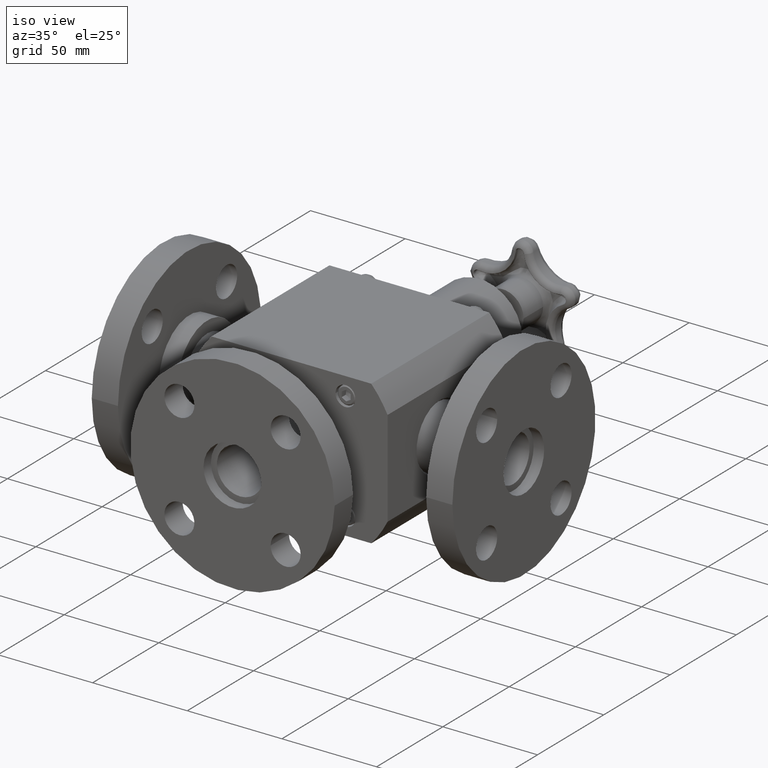
[diagram: clean part render]
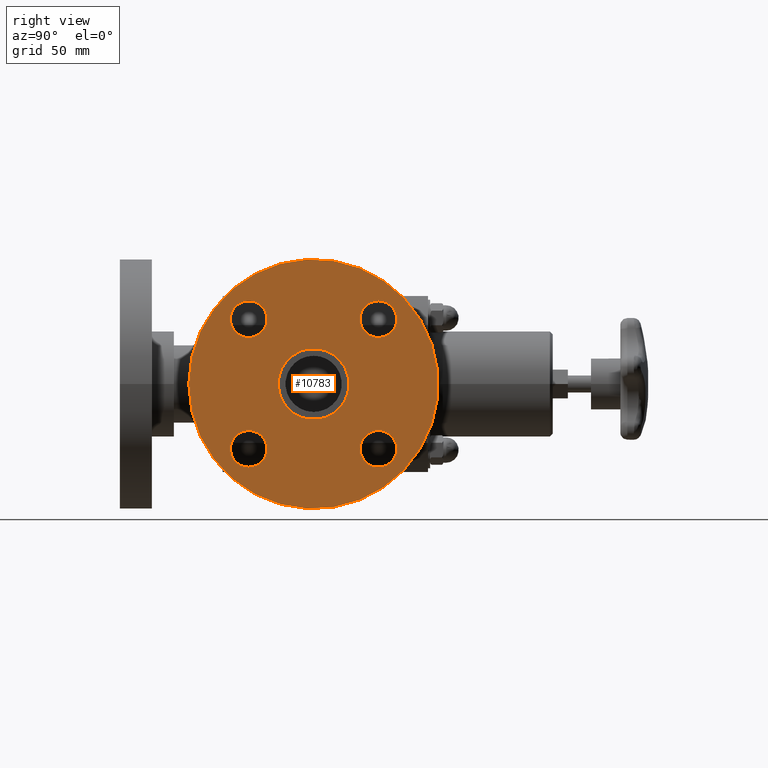
[diagram: tour spotlight — one face highlighted and labeled with its STEP entity id]
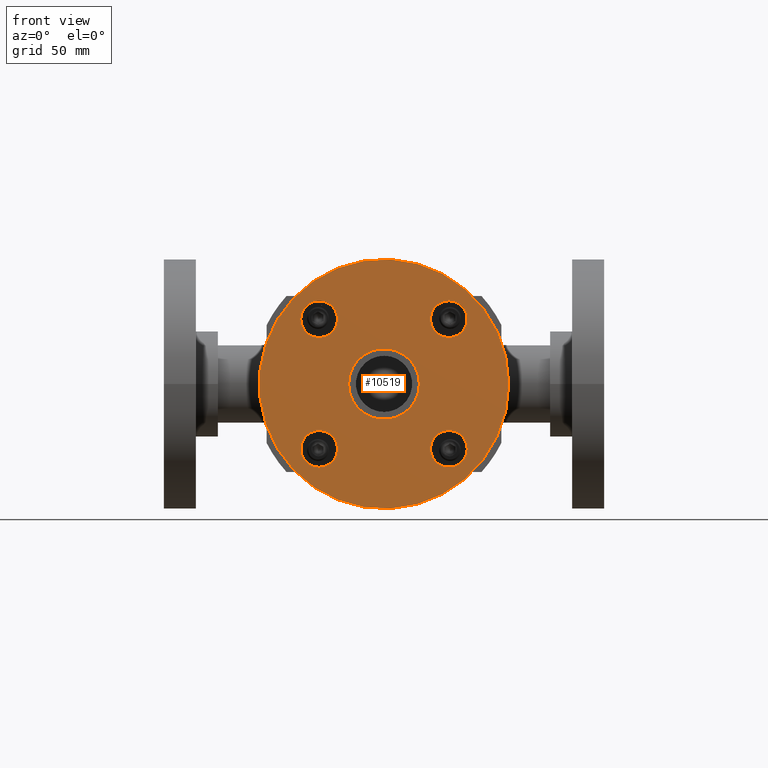
[diagram: tour spotlight — one face highlighted and labeled with its STEP entity id]
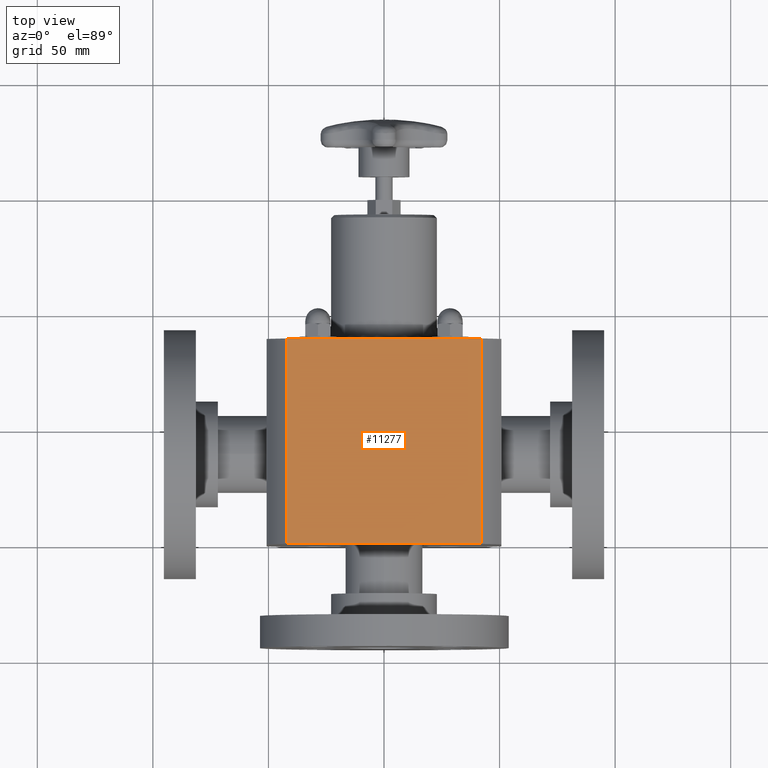
[diagram: tour spotlight — one face highlighted and labeled with its STEP entity id]
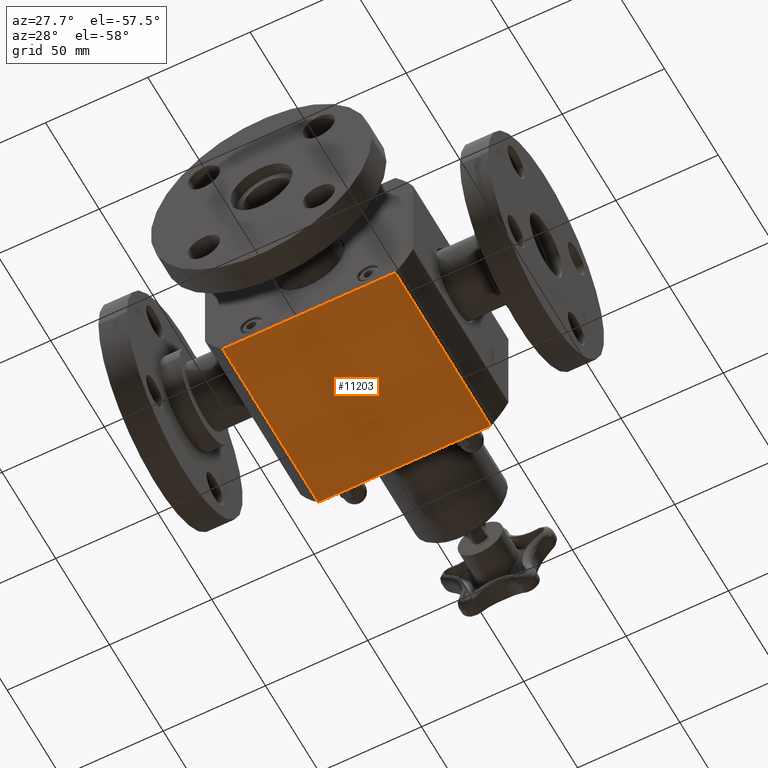
[diagram: tour spotlight — one face highlighted and labeled with its STEP entity id]
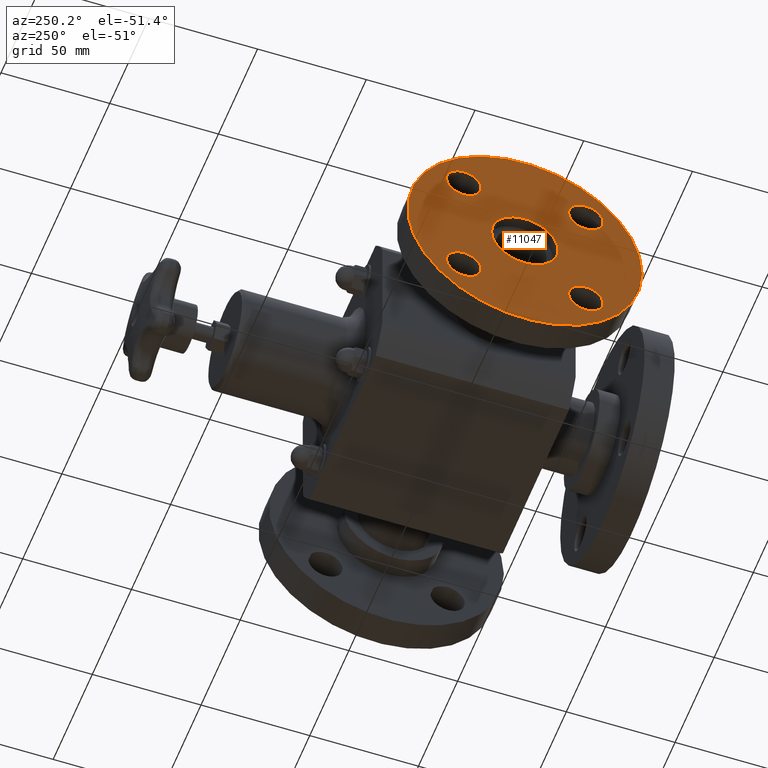
[diagram: tour spotlight — one face highlighted and labeled with its STEP entity id]
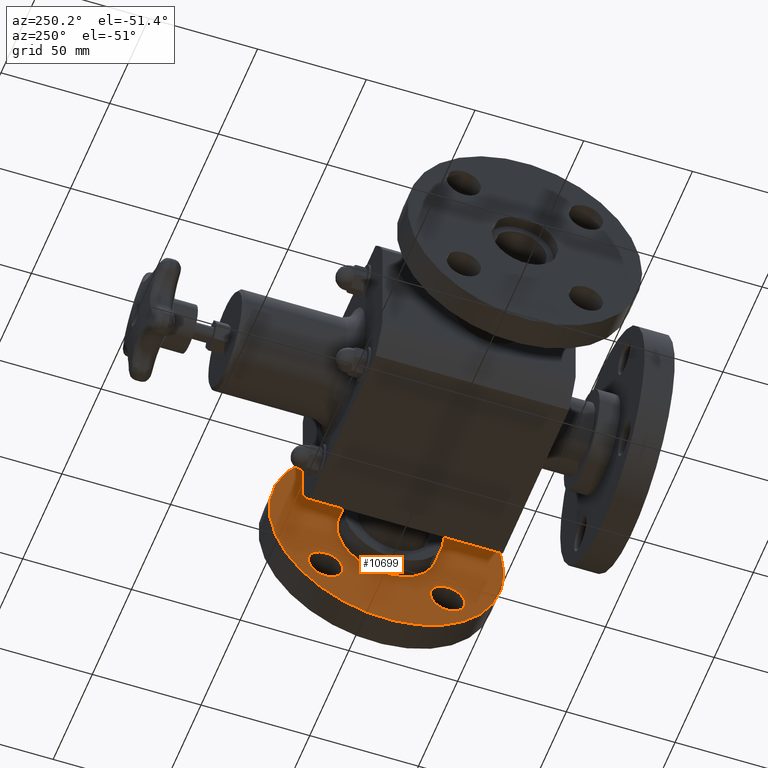
[diagram: tour spotlight — one face highlighted and labeled with its STEP entity id]
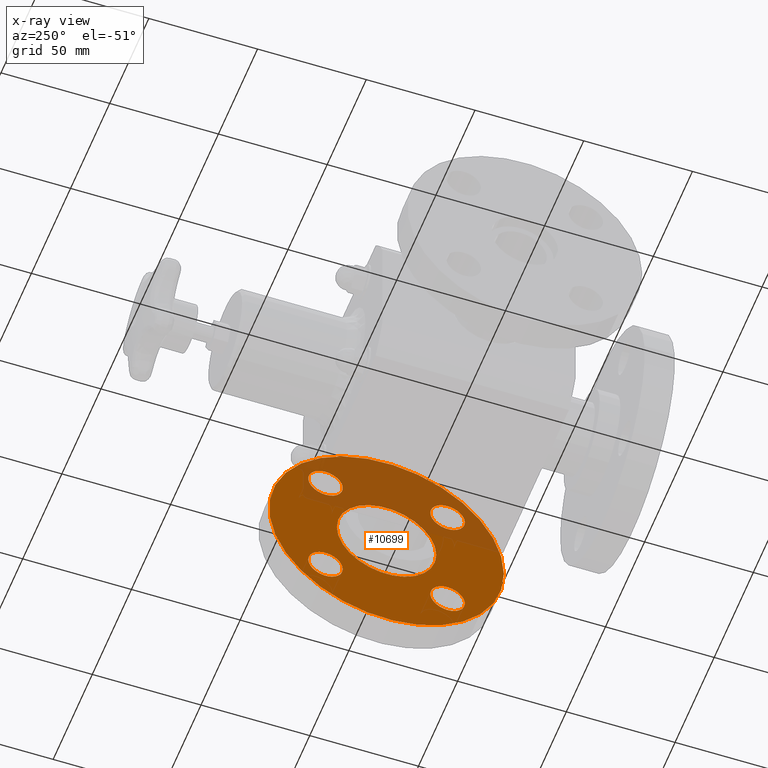
[diagram: x-ray of the same camera — body ghosted, this tour face saturated]
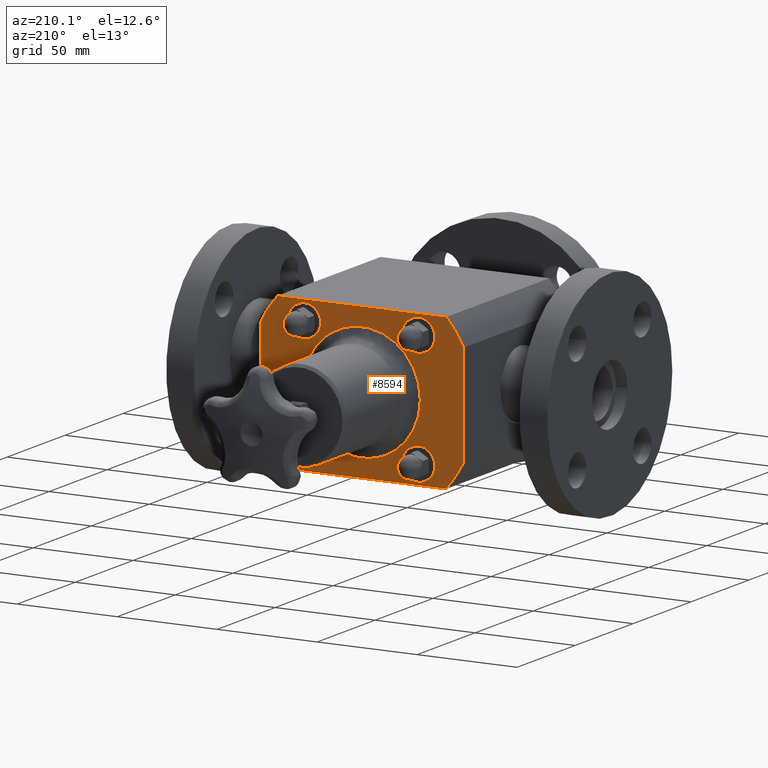
[diagram: tour spotlight — one face highlighted and labeled with its STEP entity id]
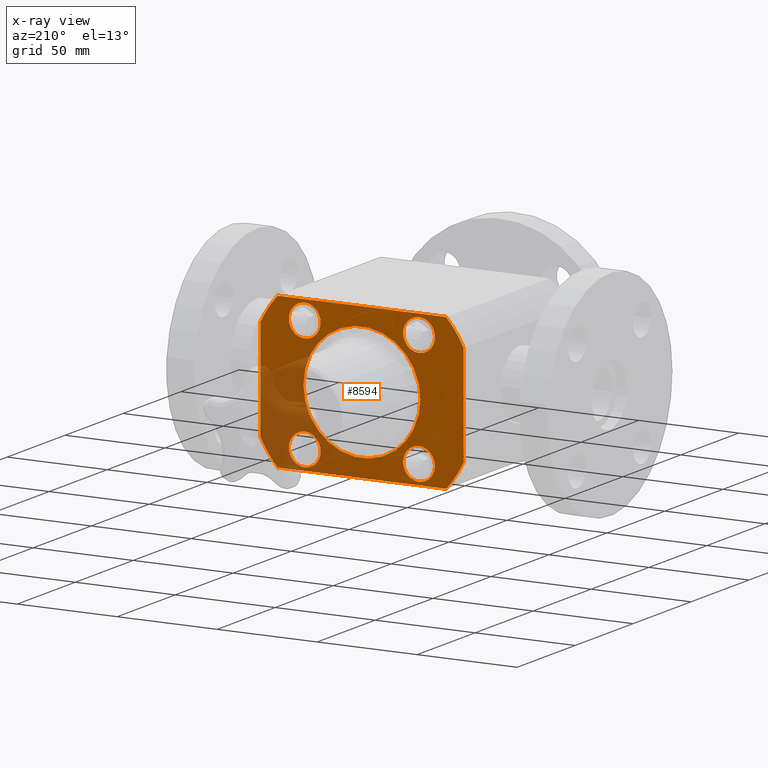
[diagram: x-ray of the same camera — body ghosted, this tour face saturated]
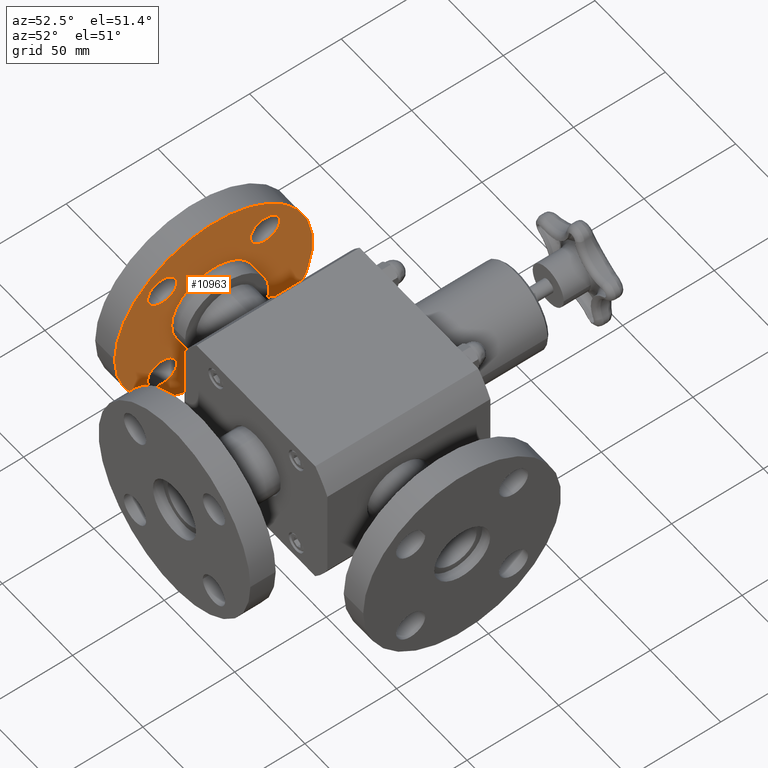
[diagram: tour spotlight — one face highlighted and labeled with its STEP entity id]
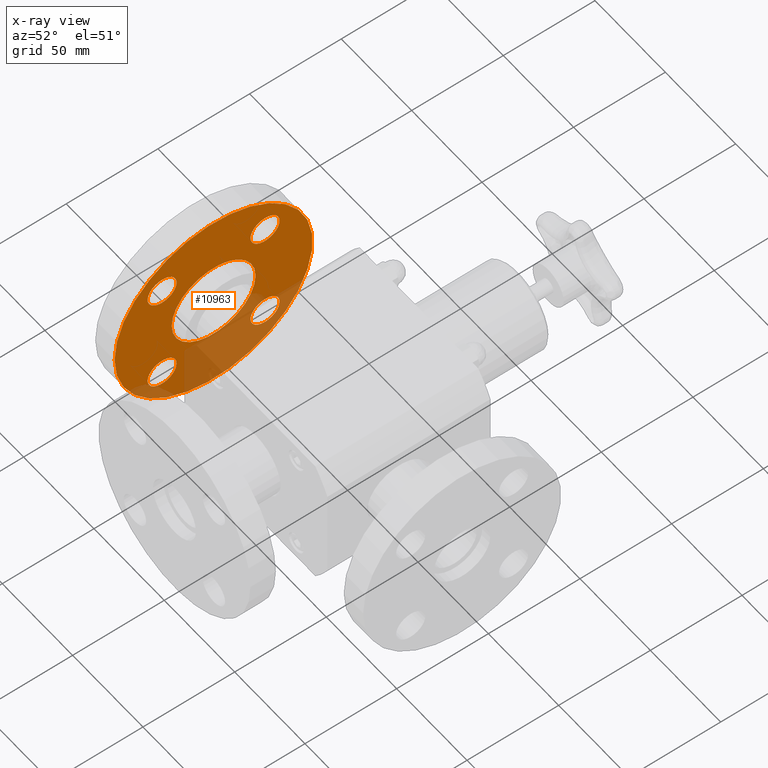
[diagram: x-ray of the same camera — body ghosted, this tour face saturated]
A machine part: a face-by-face anatomy tour. The part has 380 B-rep faces; the first image is the clean iso view, then the 8 largest visible faces are spotlighted one at a time (largest first), each with its STEP entity span.

Face 1 — right view, entity #10783. In plain terms, the highlighted planar face has unit normal (1, 0, 0).
Definition (entity closure, byte-faithful):
#10708=CARTESIAN_POINT('',(3.750000000000000,-0.575000000000001,-2.265472E-015));
#10709=VERTEX_POINT('',#10708);
#10710=CARTESIAN_POINT('',(3.749999999999999,1.549999999999999,-4.684453E-018));
#10711=DIRECTION('',(-1.0,0.0,0.0));
#10712=DIRECTION('',(0.0,-1.0,0.0));
#10713=AXIS2_PLACEMENT_3D('',#10710,#10711,#10712);
#10714=CIRCLE('',#10713,2.125000000000000);
#10715=EDGE_CURVE('',#10709,#10709,#10714,.T.);
#10720=CARTESIAN_POINT('',(3.749999999999999,0.186249999999999,-1.455578E-015));
#10721=DIRECTION('',(1.0,0.0,0.0));
#10722=DIRECTION('',(0.0,0.0,-1.0));
#10723=AXIS2_PLACEMENT_3D('',#10720,#10721,#10722);
#10724=PLANE('',#10723);
#10725=ORIENTED_EDGE('',*,*,#10715,.F.);
#10726=EDGE_LOOP('',(#10725));
#10727=FACE_OUTER_BOUND('',#10726,.T.);
#10728=CARTESIAN_POINT('',(3.749999999999999,0.445145654396020,-0.792354345603982));
#10729=VERTEX_POINT('',#10728);
#10730=CARTESIAN_POINT('',(3.749999999999999,0.445145654396020,-1.104854345603982));
#10731=DIRECTION('',(-1.0,0.0,0.0));
#10732=DIRECTION('',(0.0,0.0,-1.0));
#10733=AXIS2_PLACEMENT_3D('',#10730,#10731,#10732);
#10734=CIRCLE('',#10733,0.312500000000000);
#10735=EDGE_CURVE('',#10729,#10729,#10734,.T.);
#10736=ORIENTED_EDGE('',*,*,#10735,.T.);
#10737=EDGE_LOOP('',(#10736));
#10738=FACE_BOUND('',#10737,.T.);
#10739=CARTESIAN_POINT('',(3.749999999999999,2.342354345603980,-1.104854345603979));
#10740=VERTEX_POINT('',#10739);
#10741=CARTESIAN_POINT('',(3.749999999999999,2.654854345603981,-1.104854345603979));
#10742=DIRECTION('',(-1.0,0.0,0.0));
#10743=DIRECTION('',(0.0,1.0,0.0));
#10744=AXIS2_PLACEMENT_3D('',#10741,#10742,#10743);
#10745=CIRCLE('',#10744,0.312500000000000);
#10746=EDGE_CURVE('',#10740,#10740,#10745,.T.);
#10747=ORIENTED_EDGE('',*,*,#10746,.T.);
#10748=EDGE_LOOP('',(#10747));
#10749=FACE_BOUND('',#10748,.T.);
#10750=CARTESIAN_POINT('',(3.749999999999999,2.654854345603979,0.792354345603982));
#10751=VERTEX_POINT('',#10750);
#10752=CARTESIAN_POINT('',(3.749999999999999,2.654854345603978,1.104854345603982));
#10753=DIRECTION('',(-1.0,0.0,0.0));
#10754=DIRECTION('',(0.0,0.0,1.0));
#10755=AXIS2_PLACEMENT_3D('',#10752,#10753,#10754);
#10756=CIRCLE('',#10755,0.312500000000000);
#10757=EDGE_CURVE('',#10751,#10751,#10756,.T.);
#10758=ORIENTED_EDGE('',*,*,#10757,.T.);
#10759=EDGE_LOOP('',(#10758));
#10760=FACE_BOUND('',#10759,.T.);
#10761=CARTESIAN_POINT('',(3.749999999999999,0.757645654396018,1.104854345603979));
#10762=VERTEX_POINT('',#10761);
#10763=CARTESIAN_POINT('',(3.749999999999999,0.445145654396018,1.104854345603979));
#10764=DIRECTION('',(-1.0,0.0,0.0));
#10765=DIRECTION('',(0.0,-1.0,0.0));
#10766=AXIS2_PLACEMENT_3D('',#10763,#10764,#10765);
#10767=CIRCLE('',#10766,0.312500000000000);
#10768=EDGE_CURVE('',#10762,#10762,#10767,.T.);
#10769=ORIENTED_EDGE('',*,*,#10768,.T.);
#10770=EDGE_LOOP('',(#10769));
#10771=FACE_BOUND('',#10770,.T.);
#10772=CARTESIAN_POINT('',(3.749999999999999,0.947499999999999,-6.456843E-016));
#10773=VERTEX_POINT('',#10772);
#10774=CARTESIAN_POINT('',(3.749999999999999,1.549999999999999,-4.684453E-018));
#10775=DIRECTION('',(-1.0,0.0,0.0));
#10776=DIRECTION('',(0.0,-1.0,0.0));
#10777=AXIS2_PLACEMENT_3D('',#10774,#10775,#10776);
#10778=CIRCLE('',#10777,0.602500000000000);
#10779=EDGE_CURVE('',#10773,#10773,#10778,.T.);
#10780=ORIENTED_EDGE('',*,*,#10779,.T.);
#10781=EDGE_LOOP('',(#10780));
#10782=FACE_BOUND('',#10781,.T.);
#10783=ADVANCED_FACE('',(#10727,#10738,#10749,#10760,#10771,#10782),#10724,.T.);

Face 2 — front view, entity #10519. In plain terms, the highlighted planar face has unit normal (0, -1, 0).
Definition (entity closure, byte-faithful):
#10444=CARTESIAN_POINT('',(2.124999999999999,-1.750000000000002,1.105701E-016));
#10445=VERTEX_POINT('',#10444);
#10446=CARTESIAN_POINT('',(-9.220739E-016,-1.750000000000003,-1.711808E-015));
#10447=DIRECTION('',(0.0,1.0,0.0));
#10448=DIRECTION('',(1.0,0.0,0.0));
#10449=AXIS2_PLACEMENT_3D('',#10446,#10447,#10448);
#10450=CIRCLE('',#10449,2.125000000000000);
#10451=EDGE_CURVE('',#10445,#10445,#10450,.T.);
#10456=CARTESIAN_POINT('',(1.363749999999999,-1.750000000000003,-5.422699E-016));
#10457=DIRECTION('',(0.0,-1.0,0.0));
#10458=DIRECTION('',(0.0,0.0,1.0));
#10459=AXIS2_PLACEMENT_3D('',#10456,#10457,#10458);
#10460=PLANE('',#10459);
#10461=ORIENTED_EDGE('',*,*,#10451,.F.);
#10462=EDGE_LOOP('',(#10461));
#10463=FACE_OUTER_BOUND('',#10462,.T.);
#10464=CARTESIAN_POINT('',(1.104854345603979,-1.750000000000003,0.792354345603980));
#10465=VERTEX_POINT('',#10464);
#10466=CARTESIAN_POINT('',(1.104854345603979,-1.750000000000003,1.104854345603980));
#10467=DIRECTION('',(0.0,1.0,0.0));
#10468=DIRECTION('',(0.0,0.0,1.0));
#10469=AXIS2_PLACEMENT_3D('',#10466,#10467,#10468);
#10470=CIRCLE('',#10469,0.312500000000000);
#10471=EDGE_CURVE('',#10465,#10465,#10470,.T.);
#10472=ORIENTED_EDGE('',*,*,#10471,.T.);
#10473=EDGE_LOOP('',(#10472));
#10474=FACE_BOUND('',#10473,.T.);
#10475=CARTESIAN_POINT('',(-0.792354345603982,-1.750000000000004,1.104854345603978));
#10476=VERTEX_POINT('',#10475);
#10477=CARTESIAN_POINT('',(-1.104854345603982,-1.750000000000004,1.104854345603978));
#10478=DIRECTION('',(0.0,1.0,0.0));
#10479=DIRECTION('',(-1.0,0.0,0.0));
#10480=AXIS2_PLACEMENT_3D('',#10477,#10478,#10479);
#10481=CIRCLE('',#10480,0.312500000000000);
#10482=EDGE_CURVE('',#10476,#10476,#10481,.T.);
#10483=ORIENTED_EDGE('',*,*,#10482,.T.);
#10484=EDGE_LOOP('',(#10483));
#10485=FACE_BOUND('',#10484,.T.);
#10486=CARTESIAN_POINT('',(-1.104854345603981,-1.750000000000004,-0.792354345603983));
#10487=VERTEX_POINT('',#10486);
#10488=CARTESIAN_POINT('',(-1.104854345603980,-1.750000000000004,-1.104854345603983));
#10489=DIRECTION('',(0.0,1.0,0.0));
#10490=DIRECTION('',(0.0,0.0,-1.0));
#10491=AXIS2_PLACEMENT_3D('',#10488,#10489,#10490);
#10492=CIRCLE('',#10491,0.312500000000000);
#10493=EDGE_CURVE('',#10487,#10487,#10492,.T.);
#10494=ORIENTED_EDGE('',*,*,#10493,.T.);
#10495=EDGE_LOOP('',(#10494));
#10496=FACE_BOUND('',#10495,.T.);
#10497=CARTESIAN_POINT('',(0.792354345603980,-1.750000000000003,-1.104854345603981));
#10498=VERTEX_POINT('',#10497);
#10499=CARTESIAN_POINT('',(1.104854345603980,-1.750000000000003,-1.104854345603981));
#10500=DIRECTION('',(0.0,1.0,0.0));
#10501=DIRECTION('',(1.0,0.0,0.0));
#10502=AXIS2_PLACEMENT_3D('',#10499,#10500,#10501);
#10503=CIRCLE('',#10502,0.312500000000000);
#10504=EDGE_CURVE('',#10498,#10498,#10503,.T.);
#10505=ORIENTED_EDGE('',*,*,#10504,.T.);
#10506=EDGE_LOOP('',(#10505));
#10507=FACE_BOUND('',#10506,.T.);
#10508=CARTESIAN_POINT('',(0.602499999999999,-1.750000000000003,-1.195110E-015));
#10509=VERTEX_POINT('',#10508);
#10510=CARTESIAN_POINT('',(-9.220739E-016,-1.750000000000003,-1.711808E-015));
#10511=DIRECTION('',(0.0,1.0,0.0));
#10512=DIRECTION('',(1.0,0.0,0.0));
#10513=AXIS2_PLACEMENT_3D('',#10510,#10511,#10512);
#10514=CIRCLE('',#10513,0.602500000000000);
#10515=EDGE_CURVE('',#10509,#10509,#10514,.T.);
#10516=ORIENTED_EDGE('',*,*,#10515,.T.);
#10517=EDGE_LOOP('',(#10516));
#10518=FACE_BOUND('',#10517,.T.);
#10519=ADVANCED_FACE('',(#10463,#10474,#10485,#10496,#10507,#10518),#10460,.T.);

Face 3 — top view, entity #11277. In plain terms, the highlighted planar face has unit normal (0, 0, 1).
Definition (entity closure, byte-faithful):
#8487=CARTESIAN_POINT('',(-1.660242828624779,3.499999999999998,1.500000000000000));
#8488=VERTEX_POINT('',#8487);
#8496=CARTESIAN_POINT('',(1.660242828624775,3.500000000000000,1.499999999999999));
#8497=VERTEX_POINT('',#8496);
#8498=CARTESIAN_POINT('',(1.660242828624775,3.500000000000000,1.499999999999999));
#8499=DIRECTION('',(-1.0,0.0,0.0));
#8500=VECTOR('',#8499,3.320485657249554);
#8501=LINE('',#8498,#8500);
#8502=EDGE_CURVE('',#8497,#8488,#8501,.T.);
#11121=CARTESIAN_POINT('',(1.660242828624776,-1.349041E-015,1.499999999999999));
#11122=VERTEX_POINT('',#11121);
#11123=CARTESIAN_POINT('',(1.660242828624776,-1.349041E-015,1.499999999999999));
#11124=DIRECTION('',(0.0,1.0,0.0));
#11125=VECTOR('',#11124,3.500000000000001);
#11126=LINE('',#11123,#11125);
#11127=EDGE_CURVE('',#11122,#8497,#11126,.T.);
#11242=CARTESIAN_POINT('',(-1.660242828624777,-3.007957E-015,1.499999999999999));
#11243=VERTEX_POINT('',#11242);
#11251=CARTESIAN_POINT('',(-1.660242828624777,-3.007957E-015,1.499999999999999));
#11252=DIRECTION('',(0.0,1.0,0.0));
#11253=VECTOR('',#11252,3.500000000000001);
#11254=LINE('',#11251,#11253);
#11255=EDGE_CURVE('',#11243,#8488,#11254,.T.);
#11261=CARTESIAN_POINT('',(1.660242828624776,-1.349041E-015,1.499999999999999));
#11262=DIRECTION('',(0.0,0.0,1.0));
#11263=DIRECTION('',(1.0,0.0,0.0));
#11264=AXIS2_PLACEMENT_3D('',#11261,#11262,#11263);
#11265=PLANE('',#11264);
#11266=ORIENTED_EDGE('',*,*,#11255,.F.);
#11267=CARTESIAN_POINT('',(-1.660242828624777,-3.007957E-015,1.499999999999999));
#11268=DIRECTION('',(1.0,0.0,0.0));
#11269=VECTOR('',#11268,3.320485657249553);
#11270=LINE('',#11267,#11269);
#11271=EDGE_CURVE('',#11243,#11122,#11270,.T.);
#11272=ORIENTED_EDGE('',*,*,#11271,.T.);
#11273=ORIENTED_EDGE('',*,*,#11127,.T.);
#11274=ORIENTED_EDGE('',*,*,#8502,.T.);
#11275=EDGE_LOOP('',(#11266,#11272,#11273,#11274));
#11276=FACE_OUTER_BOUND('',#11275,.T.);
#11277=ADVANCED_FACE('',(#11276),#11265,.T.);

Face 4 — auxiliary view, entity #11203. In plain terms, the highlighted planar face has unit normal (0, 0, -1).
Definition (entity closure, byte-faithful):
#8521=CARTESIAN_POINT('',(1.660242828624775,3.500000000000000,-1.500000000000000));
#8522=VERTEX_POINT('',#8521);
#8530=CARTESIAN_POINT('',(-1.660242828624779,3.499999999999998,-1.500000000000000));
#8531=VERTEX_POINT('',#8530);
#8532=CARTESIAN_POINT('',(-1.660242828624778,3.499999999999997,-1.500000000000000));
#8533=DIRECTION('',(1.0,0.0,0.0));
#8534=VECTOR('',#8533,3.320485657249553);
#8535=LINE('',#8532,#8534);
#8536=EDGE_CURVE('',#8531,#8522,#8535,.T.);
#11161=CARTESIAN_POINT('',(1.660242828624775,-4.888088E-016,-1.500000000000001));
#11162=VERTEX_POINT('',#11161);
#11170=CARTESIAN_POINT('',(1.660242828624775,-4.888088E-016,-1.500000000000001));
#11171=DIRECTION('',(0.0,1.0,0.0));
#11172=VECTOR('',#11171,3.500000000000000);
#11173=LINE('',#11170,#11172);
#11174=EDGE_CURVE('',#11162,#8522,#11173,.T.);
#11180=CARTESIAN_POINT('',(-1.660242828624778,-2.147725E-015,-1.500000000000001));
#11181=DIRECTION('',(0.0,0.0,-1.0));
#11182=DIRECTION('',(-1.0,0.0,0.0));
#11183=AXIS2_PLACEMENT_3D('',#11180,#11181,#11182);
#11184=PLANE('',#11183);
#11185=ORIENTED_EDGE('',*,*,#11174,.F.);
#11186=CARTESIAN_POINT('',(-1.660242828624778,-2.147725E-015,-1.500000000000001));
#11187=VERTEX_POINT('',#11186);
#11188=CARTESIAN_POINT('',(1.660242828624775,-4.888088E-016,-1.500000000000001));
#11189=DIRECTION('',(-1.0,0.0,0.0));
#11190=VECTOR('',#11189,3.320485657249553);
#11191=LINE('',#11188,#11190);
#11192=EDGE_CURVE('',#11162,#11187,#11191,.T.);
#11193=ORIENTED_EDGE('',*,*,#11192,.T.);
#11194=CARTESIAN_POINT('',(-1.660242828624778,-2.147725E-015,-1.500000000000001));
#11195=DIRECTION('',(0.0,1.0,0.0));
#11196=VECTOR('',#11195,3.500000000000000);
#11197=LINE('',#11194,#11196);
#11198=EDGE_CURVE('',#11187,#8531,#11197,.T.);
#11199=ORIENTED_EDGE('',*,*,#11198,.T.);
#11200=ORIENTED_EDGE('',*,*,#8536,.T.);
#11201=EDGE_LOOP('',(#11185,#11193,#11199,#11200));
#11202=FACE_OUTER_BOUND('',#11201,.T.);
#11203=ADVANCED_FACE('',(#11202),#11184,.T.);

Face 5 — auxiliary view, entity #11047. In plain terms, the highlighted planar face has unit normal (-1, 0, 0).
Definition (entity closure, byte-faithful):
#10972=CARTESIAN_POINT('',(-3.750000000000002,-0.575000000000005,-2.505233E-017));
#10973=VERTEX_POINT('',#10972);
#10974=CARTESIAN_POINT('',(-3.750000000000002,1.549999999999995,-1.067178E-015));
#10975=DIRECTION('',(1.0,0.0,0.0));
#10976=DIRECTION('',(0.0,-1.0,0.0));
#10977=AXIS2_PLACEMENT_3D('',#10974,#10975,#10976);
#10978=CIRCLE('',#10977,2.125000000000000);
#10979=EDGE_CURVE('',#10973,#10973,#10978,.T.);
#10984=CARTESIAN_POINT('',(-3.750000000000002,0.186249999999995,-3.983786E-016));
#10985=DIRECTION('',(-1.0,0.0,0.0));
#10986=DIRECTION('',(0.0,0.0,1.0));
#10987=AXIS2_PLACEMENT_3D('',#10984,#10985,#10986);
#10988=PLANE('',#10987);
#10989=ORIENTED_EDGE('',*,*,#10979,.F.);
#10990=EDGE_LOOP('',(#10989));
#10991=FACE_OUTER_BOUND('',#10990,.T.);
#10992=CARTESIAN_POINT('',(-3.750000000000002,0.445145654396015,0.792354345603980));
#10993=VERTEX_POINT('',#10992);
#10994=CARTESIAN_POINT('',(-3.750000000000002,0.445145654396016,1.104854345603980));
#10995=DIRECTION('',(1.0,0.0,0.0));
#10996=DIRECTION('',(0.0,0.0,1.0));
#10997=AXIS2_PLACEMENT_3D('',#10994,#10995,#10996);
#10998=CIRCLE('',#10997,0.312500000000000);
#10999=EDGE_CURVE('',#10993,#10993,#10998,.T.);
#11000=ORIENTED_EDGE('',*,*,#10999,.T.);
#11001=EDGE_LOOP('',(#11000));
#11002=FACE_BOUND('',#11001,.T.);
#11003=CARTESIAN_POINT('',(-3.750000000000002,2.342354345603976,1.104854345603979));
#11004=VERTEX_POINT('',#11003);
#11005=CARTESIAN_POINT('',(-3.750000000000002,2.654854345603976,1.104854345603979));
#11006=DIRECTION('',(1.0,0.0,0.0));
#11007=DIRECTION('',(0.0,1.0,0.0));
#11008=AXIS2_PLACEMENT_3D('',#11005,#11006,#11007);
#11009=CIRCLE('',#11008,0.312500000000000);
#11010=EDGE_CURVE('',#11004,#11004,#11009,.T.);
#11011=ORIENTED_EDGE('',*,*,#11010,.T.);
#11012=EDGE_LOOP('',(#11011));
#11013=FACE_BOUND('',#11012,.T.);
#11014=CARTESIAN_POINT('',(-3.750000000000003,2.654854345603976,-0.792354345603982));
#11015=VERTEX_POINT('',#11014);
#11016=CARTESIAN_POINT('',(-3.750000000000003,2.654854345603976,-1.104854345603982));
#11017=DIRECTION('',(1.0,0.0,0.0));
#11018=DIRECTION('',(0.0,0.0,-1.0));
#11019=AXIS2_PLACEMENT_3D('',#11016,#11017,#11018);
#11020=CIRCLE('',#11019,0.312500000000000);
#11021=EDGE_CURVE('',#11015,#11015,#11020,.T.);
#11022=ORIENTED_EDGE('',*,*,#11021,.T.);
#11023=EDGE_LOOP('',(#11022));
#11024=FACE_BOUND('',#11023,.T.);
#11025=CARTESIAN_POINT('',(-3.750000000000002,0.757645654396015,-1.104854345603981));
#11026=VERTEX_POINT('',#11025);
#11027=CARTESIAN_POINT('',(-3.750000000000002,0.445145654396014,-1.104854345603981));
#11028=DIRECTION('',(1.0,0.0,0.0));
#11029=DIRECTION('',(0.0,-1.0,0.0));
#11030=AXIS2_PLACEMENT_3D('',#11027,#11028,#11029);
#11031=CIRCLE('',#11030,0.312500000000000);
#11032=EDGE_CURVE('',#11026,#11026,#11031,.T.);
#11033=ORIENTED_EDGE('',*,*,#11032,.T.);
#11034=EDGE_LOOP('',(#11033));
#11035=FACE_BOUND('',#11034,.T.);
#11036=CARTESIAN_POINT('',(-3.750000000000002,0.947499999999995,-7.717048E-016));
#11037=VERTEX_POINT('',#11036);
#11038=CARTESIAN_POINT('',(-3.750000000000002,1.549999999999995,-1.067178E-015));
#11039=DIRECTION('',(1.0,0.0,0.0));
#11040=DIRECTION('',(0.0,-1.0,0.0));
#11041=AXIS2_PLACEMENT_3D('',#11038,#11039,#11040);
#11042=CIRCLE('',#11041,0.602500000000000);
#11043=EDGE_CURVE('',#11037,#11037,#11042,.T.);
#11044=ORIENTED_EDGE('',*,*,#11043,.T.);
#11045=EDGE_LOOP('',(#11044));
#11046=FACE_BOUND('',#11045,.T.);
#11047=ADVANCED_FACE('',(#10991,#11002,#11013,#11024,#11035,#11046),#10988,.T.);

Face 6 — auxiliary view, entity #10699. An x-ray twin of the same camera follows (body ghosted, this face saturated) — the face is partly hidden behind the body. In plain terms, the highlighted planar face has unit normal (-1, 0, 0).
Definition (entity closure, byte-faithful):
#10624=CARTESIAN_POINT('',(3.204999999999999,0.649999999999999,-9.266852E-016));
#10625=VERTEX_POINT('',#10624);
#10626=CARTESIAN_POINT('',(3.204999999999999,1.549999999999999,3.082487E-017));
#10627=DIRECTION('',(-1.0,0.0,0.0));
#10628=DIRECTION('',(0.0,-1.0,0.0));
#10629=AXIS2_PLACEMENT_3D('',#10626,#10627,#10628);
#10630=CIRCLE('',#10629,0.900000000000000);
#10631=EDGE_CURVE('',#10625,#10625,#10630,.T.);
#10636=CARTESIAN_POINT('',(3.204999999999999,0.037499999999999,-1.578324E-015));
#10637=DIRECTION('',(-1.0,0.0,0.0));
#10638=DIRECTION('',(0.0,0.0,1.0));
#10639=AXIS2_PLACEMENT_3D('',#10636,#10637,#10638);
#10640=PLANE('',#10639);
#10641=CARTESIAN_POINT('',(3.204999999999999,-0.575000000000001,-2.229963E-015));
#10642=VERTEX_POINT('',#10641);
#10643=CARTESIAN_POINT('',(3.204999999999999,1.549999999999999,3.082487E-017));
#10644=DIRECTION('',(-1.0,0.0,0.0));
#10645=DIRECTION('',(0.0,-1.0,0.0));
#10646=AXIS2_PLACEMENT_3D('',#10643,#10644,#10645);
#10647=CIRCLE('',#10646,2.125000000000000);
#10648=EDGE_CURVE('',#10642,#10642,#10647,.T.);
#10649=ORIENTED_EDGE('',*,*,#10648,.T.);
#10650=EDGE_LOOP('',(#10649));
#10651=FACE_OUTER_BOUND('',#10650,.T.);
#10652=CARTESIAN_POINT('',(3.204999999999999,0.445145654396020,-0.792354345603982));
#10653=VERTEX_POINT('',#10652);
#10654=CARTESIAN_POINT('',(3.204999999999999,0.445145654396020,-1.104854345603982));
#10655=DIRECTION('',(1.0,0.0,0.0));
#10656=DIRECTION('',(0.0,0.0,-1.0));
#10657=AXIS2_PLACEMENT_3D('',#10654,#10655,#10656);
#10658=CIRCLE('',#10657,0.312500000000000);
#10659=EDGE_CURVE('',#10653,#10653,#10658,.T.);
#10660=ORIENTED_EDGE('',*,*,#10659,.T.);
#10661=EDGE_LOOP('',(#10660));
#10662=FACE_BOUND('',#10661,.T.);
#10663=CARTESIAN_POINT('',(3.204999999999999,2.342354345603980,-1.104854345603979));
#10664=VERTEX_POINT('',#10663);
#10665=CARTESIAN_POINT('',(3.204999999999999,2.654854345603981,-1.104854345603979));
#10666=DIRECTION('',(1.0,0.0,0.0));
#10667=DIRECTION('',(0.0,1.0,0.0));
#10668=AXIS2_PLACEMENT_3D('',#10665,#10666,#10667);
#10669=CIRCLE('',#10668,0.312500000000000);
#10670=EDGE_CURVE('',#10664,#10664,#10669,.T.);
#10671=ORIENTED_EDGE('',*,*,#10670,.T.);
#10672=EDGE_LOOP('',(#10671));
#10673=FACE_BOUND('',#10672,.T.);
#10674=CARTESIAN_POINT('',(3.204999999999999,2.654854345603979,0.792354345603982));
#10675=VERTEX_POINT('',#10674);
#10676=CARTESIAN_POINT('',(3.204999999999999,2.654854345603978,1.104854345603982));
#10677=DIRECTION('',(1.0,0.0,0.0));
#10678=DIRECTION('',(0.0,0.0,1.0));
#10679=AXIS2_PLACEMENT_3D('',#10676,#10677,#10678);
#10680=CIRCLE('',#10679,0.312500000000000);
#10681=EDGE_CURVE('',#10675,#10675,#10680,.T.);
#10682=ORIENTED_EDGE('',*,*,#10681,.T.);
#10683=EDGE_LOOP('',(#10682));
#10684=FACE_BOUND('',#10683,.T.);
#10685=CARTESIAN_POINT('',(3.204999999999999,0.757645654396018,1.104854345603979));
#10686=VERTEX_POINT('',#10685);
#10687=CARTESIAN_POINT('',(3.204999999999999,0.445145654396018,1.104854345603979));
#10688=DIRECTION('',(1.0,0.0,0.0));
#10689=DIRECTION('',(0.0,-1.0,0.0));
#10690=AXIS2_PLACEMENT_3D('',#10687,#10688,#10689);
#10691=CIRCLE('',#10690,0.312500000000000);
#10692=EDGE_CURVE('',#10686,#10686,#10691,.T.);
#10693=ORIENTED_EDGE('',*,*,#10692,.T.);
#10694=EDGE_LOOP('',(#10693));
#10695=FACE_BOUND('',#10694,.T.);
#10696=ORIENTED_EDGE('',*,*,#10631,.F.);
#10697=EDGE_LOOP('',(#10696));
#10698=FACE_BOUND('',#10697,.T.);
#10699=ADVANCED_FACE('',(#10651,#10662,#10673,#10684,#10695,#10698),#10640,.T.);

Face 7 — auxiliary view, entity #8594. An x-ray twin of the same camera follows (body ghosted, this face saturated) — the face is partly hidden behind the body. In plain terms, the highlighted planar face has unit normal (0, 1, 0).
Definition (entity closure, byte-faithful):
#8460=CARTESIAN_POINT('',(-0.812499999999995,3.500000000000000,-1.125000000000000));
#8461=VERTEX_POINT('',#8460);
#8462=CARTESIAN_POINT('',(-1.124999999999995,3.500000000000003,-1.125000000000000));
#8463=DIRECTION('',(0.0,-1.0,0.0));
#8464=DIRECTION('',(1.0,0.0,0.0));
#8465=AXIS2_PLACEMENT_3D('',#8462,#8463,#8464);
#8466=CIRCLE('',#8465,0.312500000000000);
#8467=EDGE_CURVE('',#8461,#8461,#8466,.T.);
#8472=CARTESIAN_POINT('',(1.693749999999998,3.500000000000000,-5.376255E-016));
#8473=DIRECTION('',(0.0,1.0,0.0));
#8474=DIRECTION('',(0.0,0.0,1.0));
#8475=AXIS2_PLACEMENT_3D('',#8472,#8473,#8474);
#8476=PLANE('',#8475);
#8477=CARTESIAN_POINT('',(-2.000000000000001,3.499999999999998,1.003198011361665));
#8478=VERTEX_POINT('',#8477);
#8479=CARTESIAN_POINT('',(-2.000000000000002,3.499999999999998,-1.003198011361665));
#8480=VERTEX_POINT('',#8479);
#8481=CARTESIAN_POINT('',(-2.000000000000002,3.499999999999998,1.003198011361665));
#8482=DIRECTION('',(0.0,0.0,-1.0));
#8483=VECTOR('',#8482,2.006396022723330);
#8484=LINE('',#8481,#8483);
#8485=EDGE_CURVE('',#8478,#8480,#8484,.T.);
#8486=ORIENTED_EDGE('',*,*,#8485,.F.);
#8487=CARTESIAN_POINT('',(-1.660242828624779,3.499999999999998,1.500000000000000));
#8488=VERTEX_POINT('',#8487);
#8489=CARTESIAN_POINT('',(-2.159895E-015,3.499999999999999,-4.214597E-016));
#8490=DIRECTION('',(0.0,-1.0,0.0));
#8491=DIRECTION('',(1.0,0.0,0.0));
#8492=AXIS2_PLACEMENT_3D('',#8489,#8490,#8491);
#8493=CIRCLE('',#8492,2.237500000000000);
#8494=EDGE_CURVE('',#8488,#8478,#8493,.T.);
#8495=ORIENTED_EDGE('',*,*,#8494,.F.);
#8496=CARTESIAN_POINT('',(1.660242828624775,3.500000000000000,1.499999999999999));
#8497=VERTEX_POINT('',#8496);
#8498=CARTESIAN_POINT('',(1.660242828624775,3.500000000000000,1.499999999999999));
#8499=DIRECTION('',(-1.0,0.0,0.0));
#8500=VECTOR('',#8499,3.320485657249554);
#8501=LINE('',#8498,#8500);
#8502=EDGE_CURVE('',#8497,#8488,#8501,.T.);
#8503=ORIENTED_EDGE('',*,*,#8502,.F.);
#8504=CARTESIAN_POINT('',(1.999999999999997,3.500000000000000,1.003198011361666));
#8505=VERTEX_POINT('',#8504);
#8506=CARTESIAN_POINT('',(-2.159895E-015,3.499999999999999,-4.214597E-016));
#8507=DIRECTION('',(0.0,-1.0,0.0));
#8508=DIRECTION('',(1.0,0.0,0.0));
#8509=AXIS2_PLACEMENT_3D('',#8506,#8507,#8508);
#8510=CIRCLE('',#8509,2.237500000000000);
#8511=EDGE_CURVE('',#8505,#8497,#8510,.T.);
#8512=ORIENTED_EDGE('',*,*,#8511,.F.);
#8513=CARTESIAN_POINT('',(1.999999999999997,3.500000000000000,-1.003198011361666));
#8514=VERTEX_POINT('',#8513);
#8515=CARTESIAN_POINT('',(1.999999999999997,3.500000000000000,-1.003198011361666));
#8516=DIRECTION('',(0.0,0.0,1.0));
#8517=VECTOR('',#8516,2.006396022723332);
#8518=LINE('',#8515,#8517);
#8519=EDGE_CURVE('',#8514,#8505,#8518,.T.);
#8520=ORIENTED_EDGE('',*,*,#8519,.F.);
#8521=CARTESIAN_POINT('',(1.660242828624775,3.500000000000000,-1.500000000000000));
#8522=VERTEX_POINT('',#8521);
#8523=CARTESIAN_POINT('',(-2.159895E-015,3.499999999999999,-4.214597E-016));
#8524=DIRECTION('',(0.0,-1.0,0.0));
#8525=DIRECTION('',(1.0,0.0,0.0));
#8526=AXIS2_PLACEMENT_3D('',#8523,#8524,#8525);
#8527=CIRCLE('',#8526,2.237500000000000);
#8528=EDGE_CURVE('',#8522,#8514,#8527,.T.);
#8529=ORIENTED_EDGE('',*,*,#8528,.F.);
#8530=CARTESIAN_POINT('',(-1.660242828624779,3.499999999999998,-1.500000000000000));
#8531=VERTEX_POINT('',#8530);
#8532=CARTESIAN_POINT('',(-1.660242828624778,3.499999999999997,-1.500000000000000));
#8533=DIRECTION('',(1.0,0.0,0.0));
#8534=VECTOR('',#8533,3.320485657249553);
#8535=LINE('',#8532,#8534);
#8536=EDGE_CURVE('',#8531,#8522,#8535,.T.);
#8537=ORIENTED_EDGE('',*,*,#8536,.F.);
#8538=CARTESIAN_POINT('',(-2.159895E-015,3.499999999999999,-4.214597E-016));
#8539=DIRECTION('',(0.0,-1.0,0.0));
#8540=DIRECTION('',(1.0,0.0,0.0));
#8541=AXIS2_PLACEMENT_3D('',#8538,#8539,#8540);
#8542=CIRCLE('',#8541,2.237500000000000);
#8543=EDGE_CURVE('',#8480,#8531,#8542,.T.);
#8544=ORIENTED_EDGE('',*,*,#8543,.F.);
#8545=EDGE_LOOP('',(#8486,#8495,#8503,#8512,#8520,#8529,#8537,#8544));
#8546=FACE_OUTER_BOUND('',#8545,.T.);
#8547=CARTESIAN_POINT('',(-0.812499999999995,3.500000000000000,1.125000000000000));
#8548=VERTEX_POINT('',#8547);
#8549=CARTESIAN_POINT('',(-1.124999999999995,3.500000000000004,1.125000000000000));
#8550=DIRECTION('',(0.0,-1.0,0.0));
#8551=DIRECTION('',(1.0,0.0,0.0));
#8552=AXIS2_PLACEMENT_3D('',#8549,#8550,#8551);
#8553=CIRCLE('',#8552,0.312500000000000);
#8554=EDGE_CURVE('',#8548,#8548,#8553,.T.);
#8555=ORIENTED_EDGE('',*,*,#8554,.T.);
#8556=EDGE_LOOP('',(#8555));
#8557=FACE_BOUND('',#8556,.T.);
#8558=CARTESIAN_POINT('',(1.437500000000005,3.500000000000000,1.125000000000000));
#8559=VERTEX_POINT('',#8558);
#8560=CARTESIAN_POINT('',(1.125000000000005,3.500000000000001,1.125000000000000));
#8561=DIRECTION('',(0.0,-1.0,0.0));
#8562=DIRECTION('',(1.0,0.0,0.0));
#8563=AXIS2_PLACEMENT_3D('',#8560,#8561,#8562);
#8564=CIRCLE('',#8563,0.312500000000000);
#8565=EDGE_CURVE('',#8559,#8559,#8564,.T.);
#8566=ORIENTED_EDGE('',*,*,#8565,.T.);
#8567=EDGE_LOOP('',(#8566));
#8568=FACE_BOUND('',#8567,.T.);
#8569=CARTESIAN_POINT('',(1.149999999999998,3.500000000000000,-5.003324E-016));
#8570=VERTEX_POINT('',#8569);
#8571=CARTESIAN_POINT('',(-2.159895E-015,3.499999999999999,-4.214597E-016));
#8572=DIRECTION('',(0.0,-1.0,0.0));
#8573=DIRECTION('',(1.0,0.0,0.0));
#8574=AXIS2_PLACEMENT_3D('',#8571,#8572,#8573);
#8575=CIRCLE('',#8574,1.150000000000000);
#8576=EDGE_CURVE('',#8570,#8570,#8575,.T.);
#8577=ORIENTED_EDGE('',*,*,#8576,.T.);
#8578=EDGE_LOOP('',(#8577));
#8579=FACE_BOUND('',#8578,.T.);
#8580=CARTESIAN_POINT('',(1.437500000000005,3.500000000000000,-1.125000000000000));
#8581=VERTEX_POINT('',#8580);
#8582=CARTESIAN_POINT('',(1.125000000000005,3.500000000000000,-1.125000000000000));
#8583=DIRECTION('',(0.0,-1.0,0.0));
#8584=DIRECTION('',(1.0,0.0,0.0));
#8585=AXIS2_PLACEMENT_3D('',#8582,#8583,#8584);
#8586=CIRCLE('',#8585,0.312500000000000);
#8587=EDGE_CURVE('',#8581,#8581,#8586,.T.);
#8588=ORIENTED_EDGE('',*,*,#8587,.T.);
#8589=EDGE_LOOP('',(#8588));
#8590=FACE_BOUND('',#8589,.T.);
#8591=ORIENTED_EDGE('',*,*,#8467,.T.);
#8592=EDGE_LOOP('',(#8591));
#8593=FACE_BOUND('',#8592,.T.);
#8594=ADVANCED_FACE('',(#8546,#8557,#8568,#8579,#8590,#8593),#8476,.T.);

Face 8 — auxiliary view, entity #10963. An x-ray twin of the same camera follows (body ghosted, this face saturated) — the face is partly hidden behind the body. In plain terms, the highlighted planar face has unit normal (1, 0, 0).
Definition (entity closure, byte-faithful):
#10888=CARTESIAN_POINT('',(-3.205000000000002,0.649999999999995,-7.280598E-016));
#10889=VERTEX_POINT('',#10888);
#10890=CARTESIAN_POINT('',(-3.205000000000002,1.549999999999995,-1.169431E-015));
#10891=DIRECTION('',(1.0,0.0,0.0));
#10892=DIRECTION('',(0.0,-1.0,0.0));
#10893=AXIS2_PLACEMENT_3D('',#10890,#10891,#10892);
#10894=CIRCLE('',#10893,0.900000000000000);
#10895=EDGE_CURVE('',#10889,#10889,#10894,.T.);
#10900=CARTESIAN_POINT('',(-3.205000000000002,0.037499999999995,-4.276823E-016));
#10901=DIRECTION('',(1.0,0.0,0.0));
#10902=DIRECTION('',(0.0,0.0,-1.0));
#10903=AXIS2_PLACEMENT_3D('',#10900,#10901,#10902);
#10904=PLANE('',#10903);
#10905=CARTESIAN_POINT('',(-3.205000000000002,-0.575000000000005,-1.273049E-016));
#10906=VERTEX_POINT('',#10905);
#10907=CARTESIAN_POINT('',(-3.205000000000002,1.549999999999995,-1.169431E-015));
#10908=DIRECTION('',(1.0,0.0,0.0));
#10909=DIRECTION('',(0.0,-1.0,0.0));
#10910=AXIS2_PLACEMENT_3D('',#10907,#10908,#10909);
#10911=CIRCLE('',#10910,2.125000000000000);
#10912=EDGE_CURVE('',#10906,#10906,#10911,.T.);
#10913=ORIENTED_EDGE('',*,*,#10912,.T.);
#10914=EDGE_LOOP('',(#10913));
#10915=FACE_OUTER_BOUND('',#10914,.T.);
#10916=CARTESIAN_POINT('',(-3.205000000000002,0.445145654396015,0.792354345603980));
#10917=VERTEX_POINT('',#10916);
#10918=CARTESIAN_POINT('',(-3.205000000000002,0.445145654396016,1.104854345603980));
#10919=DIRECTION('',(-1.0,0.0,0.0));
#10920=DIRECTION('',(0.0,0.0,1.0));
#10921=AXIS2_PLACEMENT_3D('',#10918,#10919,#10920);
#10922=CIRCLE('',#10921,0.312500000000000);
#10923=EDGE_CURVE('',#10917,#10917,#10922,.T.);
#10924=ORIENTED_EDGE('',*,*,#10923,.T.);
#10925=EDGE_LOOP('',(#10924));
#10926=FACE_BOUND('',#10925,.T.);
#10927=CARTESIAN_POINT('',(-3.205000000000002,2.342354345603976,1.104854345603979));
#10928=VERTEX_POINT('',#10927);
#10929=CARTESIAN_POINT('',(-3.205000000000002,2.654854345603976,1.104854345603979));
#10930=DIRECTION('',(-1.0,0.0,0.0));
#10931=DIRECTION('',(0.0,1.0,0.0));
#10932=AXIS2_PLACEMENT_3D('',#10929,#10930,#10931);
#10933=CIRCLE('',#10932,0.312500000000000);
#10934=EDGE_CURVE('',#10928,#10928,#10933,.T.);
#10935=ORIENTED_EDGE('',*,*,#10934,.T.);
#10936=EDGE_LOOP('',(#10935));
#10937=FACE_BOUND('',#10936,.T.);
#10938=CARTESIAN_POINT('',(-3.205000000000002,2.654854345603976,-0.792354345603982));
#10939=VERTEX_POINT('',#10938);
#10940=CARTESIAN_POINT('',(-3.205000000000003,2.654854345603976,-1.104854345603982));
#10941=DIRECTION('',(-1.0,0.0,0.0));
#10942=DIRECTION('',(0.0,0.0,-1.0));
#10943=AXIS2_PLACEMENT_3D('',#10940,#10941,#10942);
#10944=CIRCLE('',#10943,0.312500000000000);
#10945=EDGE_CURVE('',#10939,#10939,#10944,.T.);
#10946=ORIENTED_EDGE('',*,*,#10945,.T.);
#10947=EDGE_LOOP('',(#10946));
#10948=FACE_BOUND('',#10947,.T.);
#10949=CARTESIAN_POINT('',(-3.205000000000002,0.757645654396015,-1.104854345603981));
#10950=VERTEX_POINT('',#10949);
#10951=CARTESIAN_POINT('',(-3.205000000000002,0.445145654396014,-1.104854345603981));
#10952=DIRECTION('',(-1.0,0.0,0.0));
#10953=DIRECTION('',(0.0,-1.0,0.0));
#10954=AXIS2_PLACEMENT_3D('',#10951,#10952,#10953);
#10955=CIRCLE('',#10954,0.312500000000000);
#10956=EDGE_CURVE('',#10950,#10950,#10955,.T.);
#10957=ORIENTED_EDGE('',*,*,#10956,.T.);
#10958=EDGE_LOOP('',(#10957));
#10959=FACE_BOUND('',#10958,.T.);
#10960=ORIENTED_EDGE('',*,*,#10895,.F.);
#10961=EDGE_LOOP('',(#10960));
#10962=FACE_BOUND('',#10961,.T.);
#10963=ADVANCED_FACE('',(#10915,#10926,#10937,#10948,#10959,#10962),#10904,.T.);